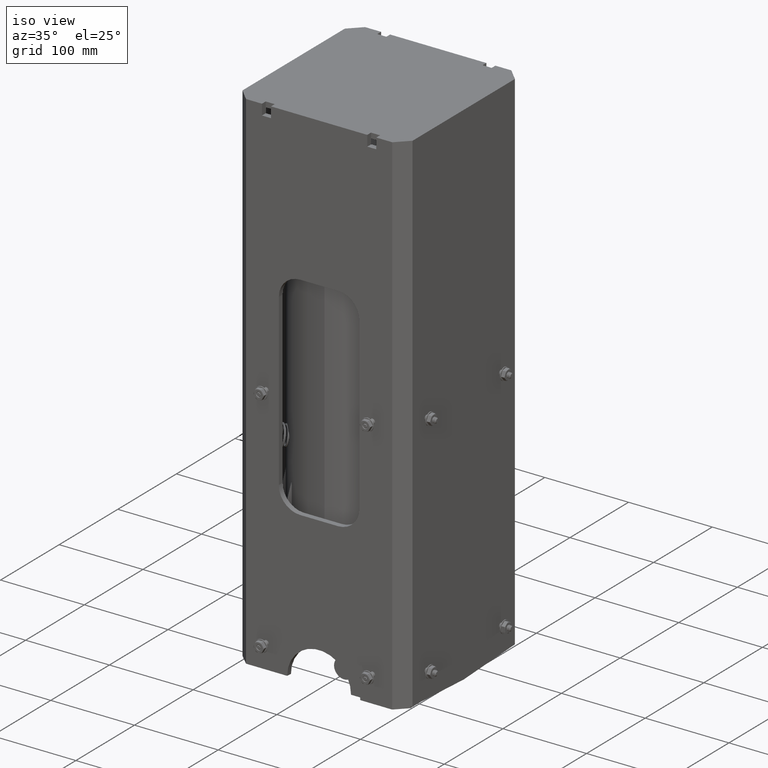
[diagram: clean part render]
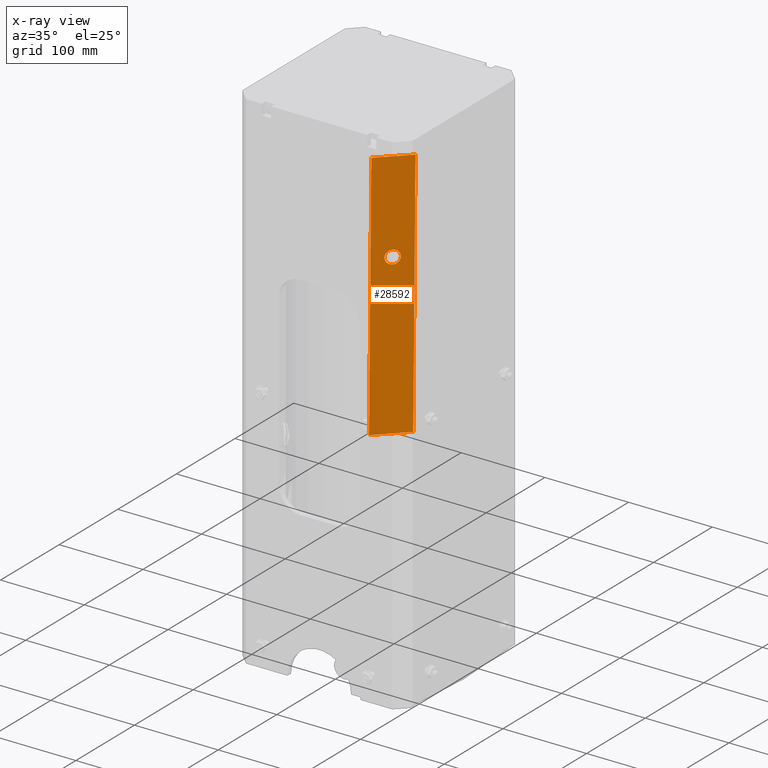
[diagram: x-ray — body ghosted, one internal face saturated and labeled with its STEP entity id]
A machine part, iso view, then the same camera in x-ray: the body is ghosted and one INTERNAL B-rep face — a face not visible from any outside direction — is saturated and labeled: STEP entity #28592.
In plain terms, the highlighted planar face has unit normal (0.7065, -0.7065, -0.0417).
Its self-contained STEP definition (entity closure, byte-faithful):
#830 = CARTESIAN_POINT ( 'NONE',  ( 6.829619984160658200E-015, 1.147376157338990600E-014, -4.500000000000069300 ) ) ;
#1485 = VERTEX_POINT ( 'NONE', #23321 ) ;
#2306 = LINE ( 'NONE', #8947, #26202 ) ;
#3181 = EDGE_CURVE ( 'NONE', #6690, #10125, #28309, .T. ) ;
#3242 = DIRECTION ( 'NONE',  ( 1.209184022919841400E-015, -1.339206523454072600E-015, -1.000000000000000000 ) ) ;
#3396 = EDGE_LOOP ( 'NONE', ( #8021, #24380, #15208, #15643 ) ) ;
#3506 = VERTEX_POINT ( 'NONE', #22342 ) ;
#3737 = PLANE ( 'NONE',  #12447 ) ;
#5469 = CARTESIAN_POINT ( 'NONE',  ( -0.8650000000000069900, 1.311287036958846300E-014, -12.15518385829147300 ) ) ;
#5470 = DIRECTION ( 'NONE',  ( 1.209184022919842200E-015, -1.339206523454071800E-015, -1.000000000000000000 ) ) ;
#6690 = VERTEX_POINT ( 'NONE', #25576 ) ;
#7324 = CARTESIAN_POINT ( 'NONE',  ( 0.8649999999999997700, 3.496765431890256900E-014, -12.15518385829142100 ) ) ;
#7818 = EDGE_LOOP ( 'NONE', ( #19356, #28696 ) ) ;
#8021 = ORIENTED_EDGE ( 'NONE', *, *, #14973, .T. ) ;
#8501 = DIRECTION ( 'NONE',  ( -1.728298507729654500E-015, -1.000000000000000000, 1.339206523454069600E-015 ) ) ;
#8661 = CARTESIAN_POINT ( 'NONE',  ( 7.218372647529394200E-015, 1.104320667609941400E-014, -4.821500000000074900 ) ) ;
#8947 = CARTESIAN_POINT ( 'NONE',  ( -0.9900000000000210900, 3.442128472016971500E-014, -0.1250000000000037200 ) ) ;
#9857 = EDGE_CURVE ( 'NONE', #3506, #15417, #30959, .T. ) ;
#10125 = VERTEX_POINT ( 'NONE', #5469 ) ;
#10278 = CARTESIAN_POINT ( 'NONE',  ( -0.8649999999999772300, 1.639108796198557900E-015, -12.50000000000025600 ) ) ;
#12157 = AXIS2_PLACEMENT_3D ( 'NONE', #830, #17490, #3242 ) ;
#12447 = AXIS2_PLACEMENT_3D ( 'NONE', #18008, #8501, #25232 ) ;
#13461 = VERTEX_POINT ( 'NONE', #7324 ) ;
#14045 = DIRECTION ( 'NONE',  ( -1.728298507729650800E-015, -1.000000000000000000, -1.651456749129918600E-015 ) ) ;
#14973 = EDGE_CURVE ( 'NONE', #1485, #6690, #2306, .T. ) ;
#15144 = DIRECTION ( 'NONE',  ( 1.000000000000000000, 7.434174029548076300E-016, -1.099927223283057500E-015 ) ) ;
#15208 = ORIENTED_EDGE ( 'NONE', *, *, #25428, .T. ) ;
#15417 = VERTEX_POINT ( 'NONE', #8661 ) ;
#15643 = ORIENTED_EDGE ( 'NONE', *, *, #27545, .T. ) ;
#15915 = EDGE_CURVE ( 'NONE', #15417, #3506, #28769, .T. ) ;
#15917 = DIRECTION ( 'NONE',  ( -1.000000000000000000, -7.434174029548076300E-016, 1.099927223283057500E-015 ) ) ;
#16272 = CARTESIAN_POINT ( 'NONE',  ( 0.8650000000000435100, 9.834652777191348400E-015, -12.50000000000023800 ) ) ;
#17452 = AXIS2_PLACEMENT_3D ( 'NONE', #28352, #14045, #30786 ) ;
#17490 = DIRECTION ( 'NONE',  ( -1.728298507729650800E-015, -1.000000000000000000, -1.651456749129918600E-015 ) ) ;
#18008 = CARTESIAN_POINT ( 'NONE',  ( -0.9899999999999823400, 1.966930555438269700E-014, -12.50000000000023300 ) ) ;
#18123 = LINE ( 'NONE', #16272, #30102 ) ;
#18216 = VECTOR ( 'NONE', #15144, 39.37007874015748100 ) ;
#19356 = ORIENTED_EDGE ( 'NONE', *, *, #15915, .F. ) ;
#19973 = FACE_OUTER_BOUND ( 'NONE', #3396, .T. ) ;
#21190 = DIRECTION ( 'NONE',  ( -1.209184022919842200E-015, 1.339206523454071800E-015, 1.000000000000000000 ) ) ;
#21198 = VECTOR ( 'NONE', #5470, 39.37007874015748100 ) ;
#22342 = CARTESIAN_POINT ( 'NONE',  ( 3.287114659719397000E-014, 1.094281822854459000E-014, -4.178500000000069800 ) ) ;
#23321 = CARTESIAN_POINT ( 'NONE',  ( 0.8649999999999836700, 3.551402391763542400E-014, -0.1249999999999971700 ) ) ;
#24380 = ORIENTED_EDGE ( 'NONE', *, *, #3181, .T. ) ;
#24599 = LINE ( 'NONE', #24687, #18216 ) ;
#24687 = CARTESIAN_POINT ( 'NONE',  ( -1.328000000000015600, -5.463695987328526400E-016, -12.15518385829146400 ) ) ;
#25232 = DIRECTION ( 'NONE',  ( 1.209184022919842200E-015, -1.339206523454071800E-015, -1.000000000000000000 ) ) ;
#25428 = EDGE_CURVE ( 'NONE', #10125, #13461, #24599, .T. ) ;
#25576 = CARTESIAN_POINT ( 'NONE',  ( -0.8650000000000283000, 3.551402391763542400E-014, -0.1250000000000168200 ) ) ;
#26202 = VECTOR ( 'NONE', #15917, 39.37007874015748100 ) ;
#26340 = FACE_BOUND ( 'NONE', #7818, .T. ) ;
#27545 = EDGE_CURVE ( 'NONE', #13461, #1485, #18123, .T. ) ;
#28309 = LINE ( 'NONE', #10278, #21198 ) ;
#28352 = CARTESIAN_POINT ( 'NONE',  ( 6.829619984160658200E-015, 1.147376157338990600E-014, -4.500000000000069300 ) ) ;
#28592 = ADVANCED_FACE ( 'NONE', ( #19973, #26340 ), #3737, .T. ) ;
#28696 = ORIENTED_EDGE ( 'NONE', *, *, #9857, .F. ) ;
#28769 = CIRCLE ( 'NONE', #12157, 0.3215000000000058400 ) ;
#30102 = VECTOR ( 'NONE', #21190, 39.37007874015748100 ) ;
#30786 = DIRECTION ( 'NONE',  ( 1.209184022919841400E-015, -1.339206523454072600E-015, -1.000000000000000000 ) ) ;
#30959 = CIRCLE ( 'NONE', #17452, 0.3215000000000058400 ) ;